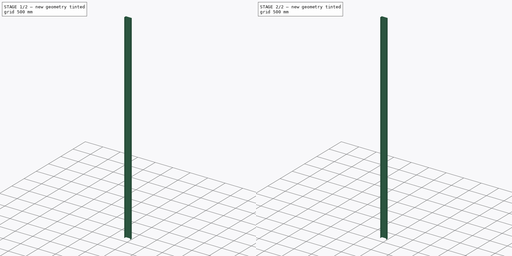
[diagram: build sequence overview — one tinted view per stage of 2, left to right]
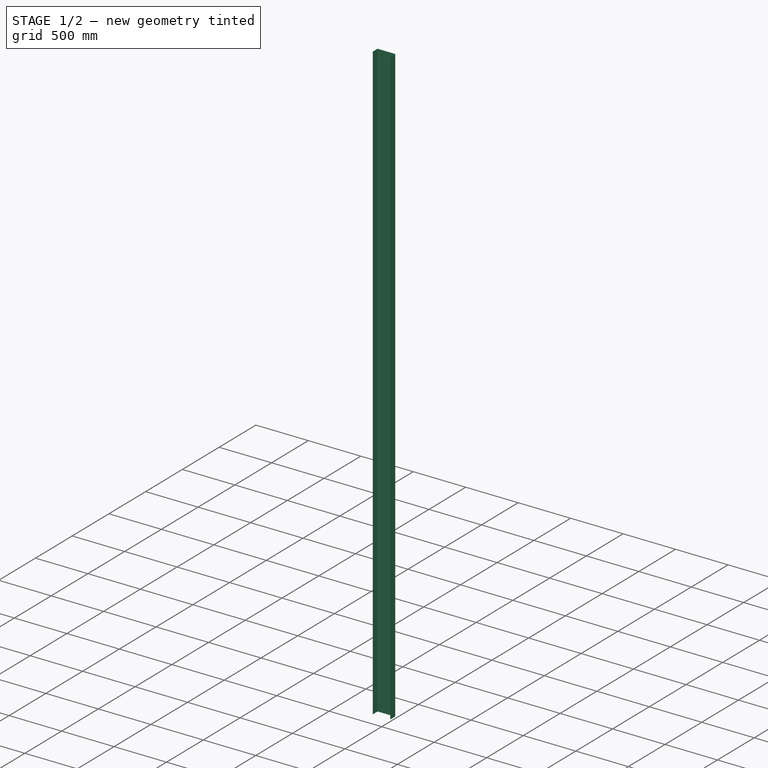
[diagram: stage 1 of 2 — iso view after this stage's code; geometry added in this stage tinted green]
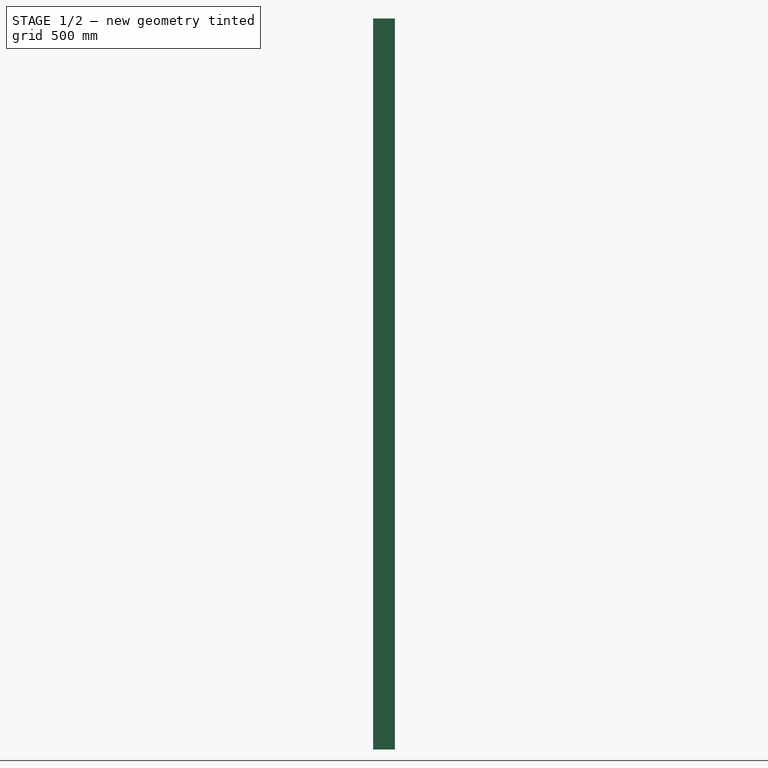
[diagram: stage 1 of 2 — front view after this stage's code; geometry added in this stage tinted green]
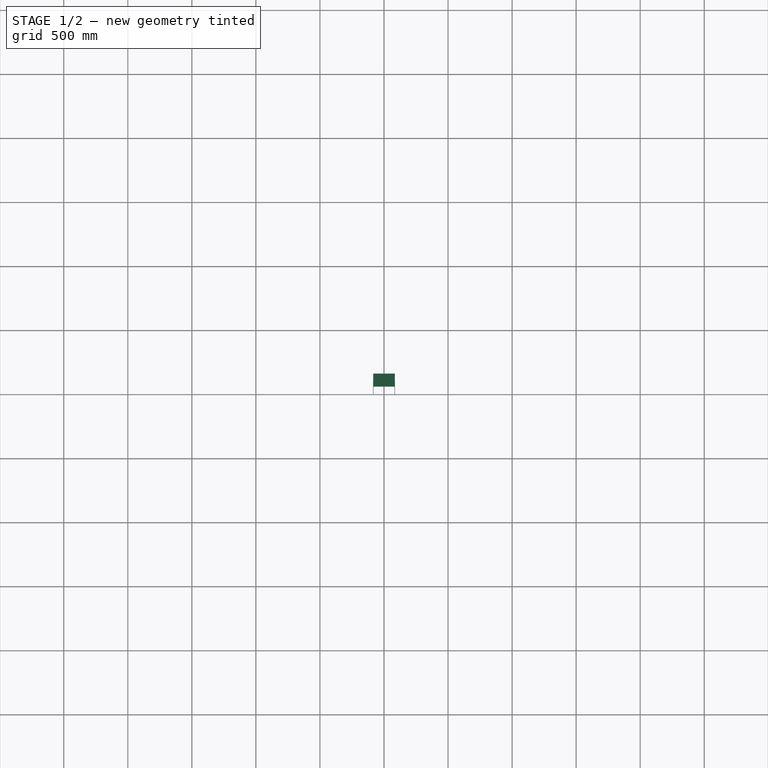
[diagram: stage 1 of 2 — top view after this stage's code; geometry added in this stage tinted green]
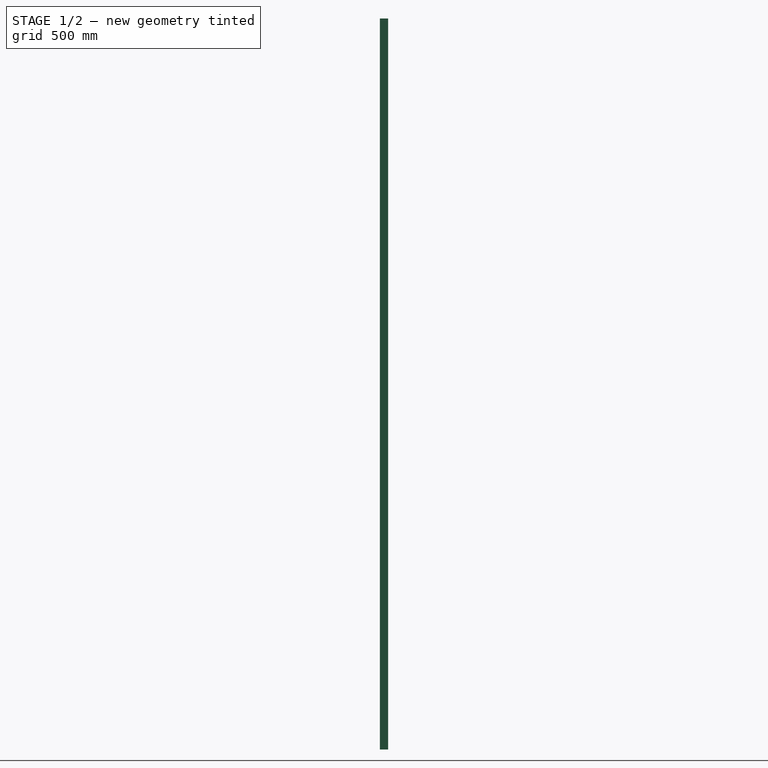
[diagram: stage 1 of 2 — right view after this stage's code; geometry added in this stage tinted green]
FCSTD DOCUMENT  (FreeCAD 0.18R4 (GitTag))
Label: side-member_bottom
License: All rights reserved
LicenseURL: http://en.wikipedia.org/wiki/All_rights_reserved
objects: PartDesign::Fillet×2, Sketcher::SketchObject×1, PartDesign::Pad×1, PartDesign::Body×1
note: 6 computed .brp shape members not serialized (recipe doc carries the construction recipe); baked Part::Feature solids carry a one-line shape summary decoded from their .brp

FEATURE [Sketcher::SketchObject] Sketch
  MapMode = 5
  Support = -> [XY_Plane]
  sketch-geometry (8):
    g0: LineSegment StartX=-84.5 StartY=64 StartZ=0 EndX=84.5 EndY=64 EndZ=0
    g1: LineSegment StartX=84.5 StartY=64 StartZ=0 EndX=84.5 EndY=0 EndZ=0
    g2: LineSegment StartX=84.5 StartY=0 StartZ=0 EndX=81.5 EndY=0 EndZ=0
    g3: LineSegment StartX=-84.5 StartY=0 StartZ=0 EndX=-84.5 EndY=64 EndZ=0
    g4: LineSegment StartX=-81.5 StartY=61 StartZ=0 EndX=81.5 EndY=61 EndZ=0
    g5: LineSegment StartX=81.5 StartY=61 StartZ=0 EndX=81.5 EndY=0 EndZ=0
    g6: LineSegment StartX=-81.5 StartY=0 StartZ=0 EndX=-81.5 EndY=61 EndZ=0
    g7: LineSegment StartX=-81.5 StartY=0 StartZ=0 EndX=-84.5 EndY=0 EndZ=0
  constraints (23):
    c: Coincident(g0,g1)
    c: Coincident(g1,g2)
    c: Coincident(g7,g3)
    c: Coincident(g3,g0)
    c: Horizontal(g0)
    c: Horizontal(g2)
    c: Vertical(g1)
    c: Vertical(g3)
    c: DistanceY(g-1,g1) = 0
    c: DistanceY(g3,g3) = 64
    c: DistanceX(g0,g0) = 169
    c: DistanceX(g-1,g0) = 84.5
    c: Coincident(g4,g5)
    c: Coincident(g6,g4)
    c: Horizontal(g4)
    c: Vertical(g5)
    c: Vertical(g6)
    c: DistanceX(g4,g0) = 3
    c: DistanceX(g0,g4) = 3
    c: DistanceY(g4,g0) = 3
    c: Coincident(g2,g5)
    c: Tangent(g2,g7)
    c: Coincident(g6,g7)
FEATURE [PartDesign::Pad] Pad
  Length = 5707
  Length2 = 100
  Midplane = true
  Profile = -> Sketch
  Type = 0
FEATURE [PartDesign::Fillet] Fillet
  Base = -> Pad [Edge20,Edge17]
  BaseFeature = -> Pad
  Radius = 3
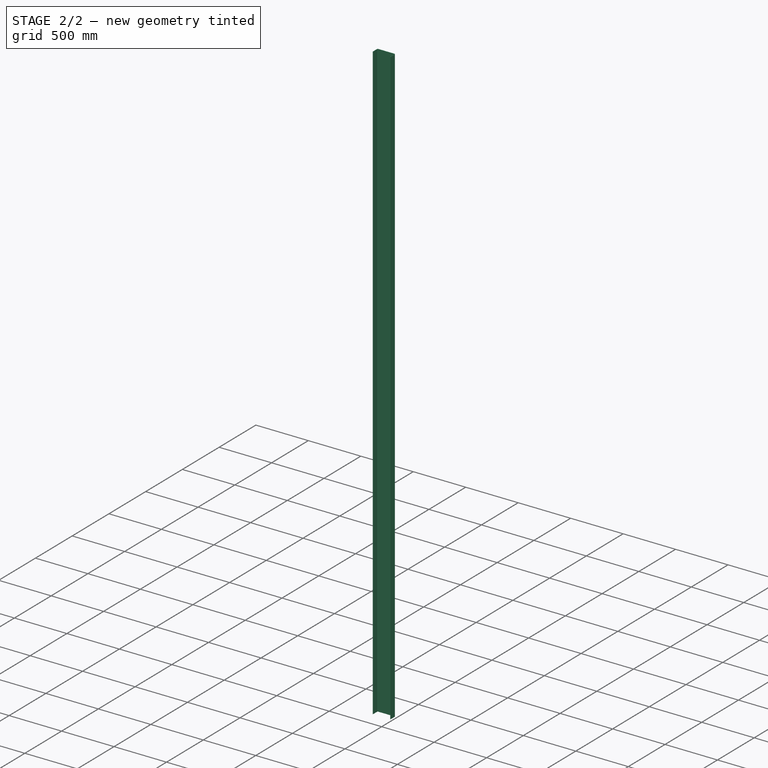
[diagram: stage 2 of 2 — iso view after this stage's code; geometry added in this stage tinted green]
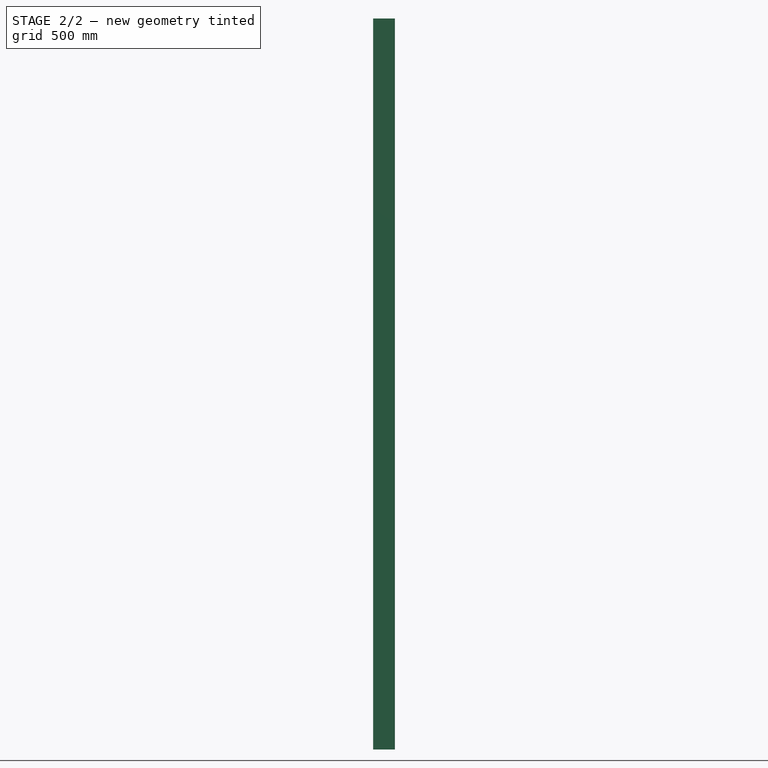
[diagram: stage 2 of 2 — front view after this stage's code; geometry added in this stage tinted green]
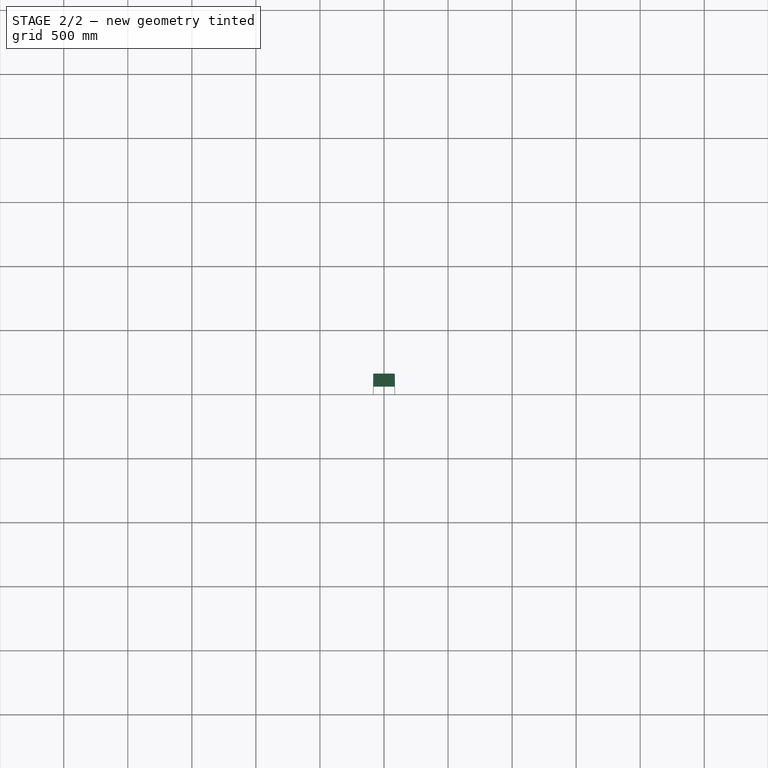
[diagram: stage 2 of 2 — top view after this stage's code; geometry added in this stage tinted green]
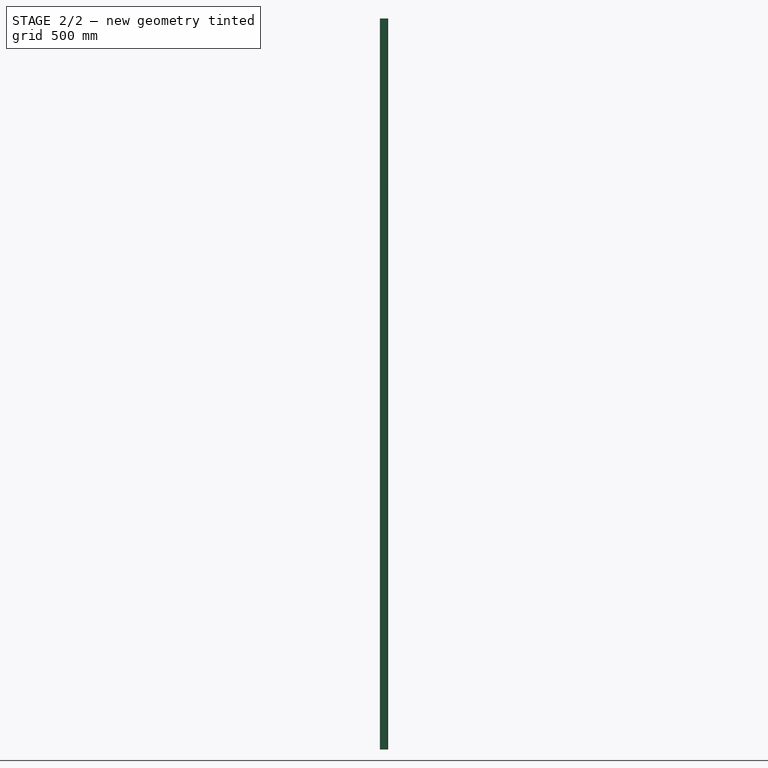
[diagram: stage 2 of 2 — right view after this stage's code; geometry added in this stage tinted green]
FEATURE [PartDesign::Fillet] Fillet001
  Base = -> Fillet [Edge28,Edge26]
  BaseFeature = -> Fillet
  Radius = 6
FEATURE [PartDesign::Body] Body
  Group = -> [Sketch,Pad,Fillet,Fillet001]
  Origin = -> Origin
  Tip = -> Fillet001
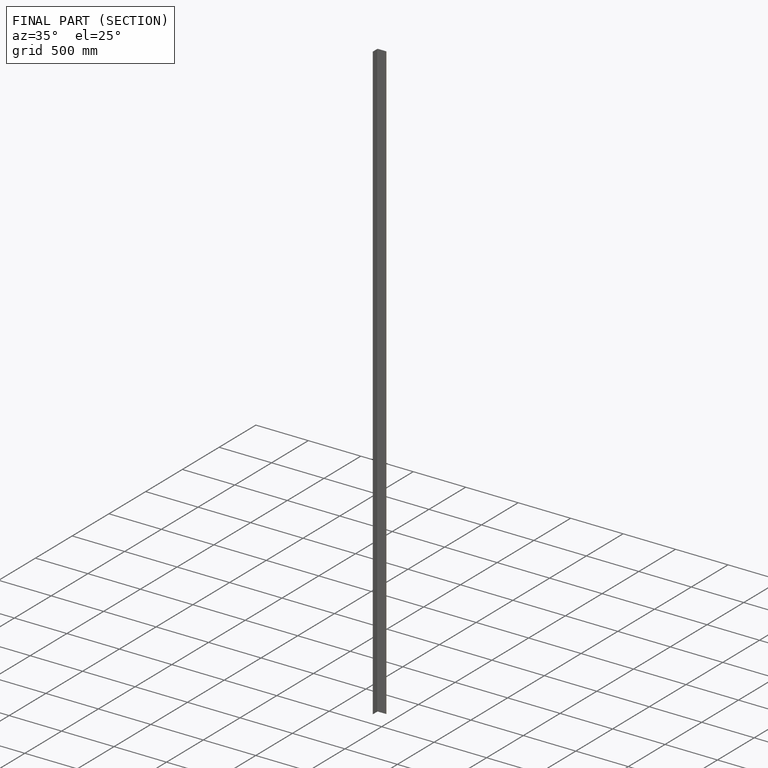
[diagram: finished part — half-section view (interior)]
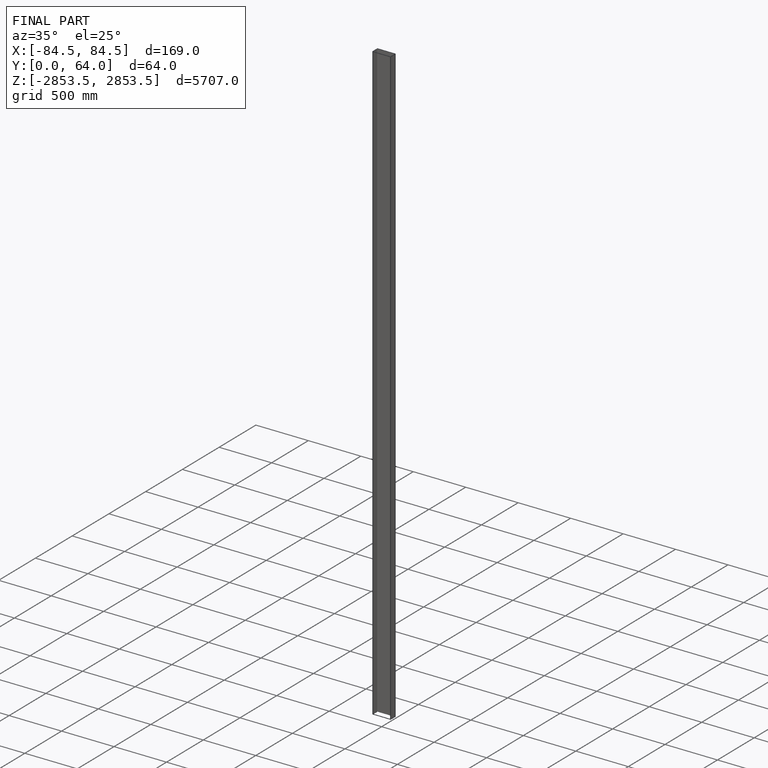
[diagram: finished part — iso view with bounding-box wireframe]
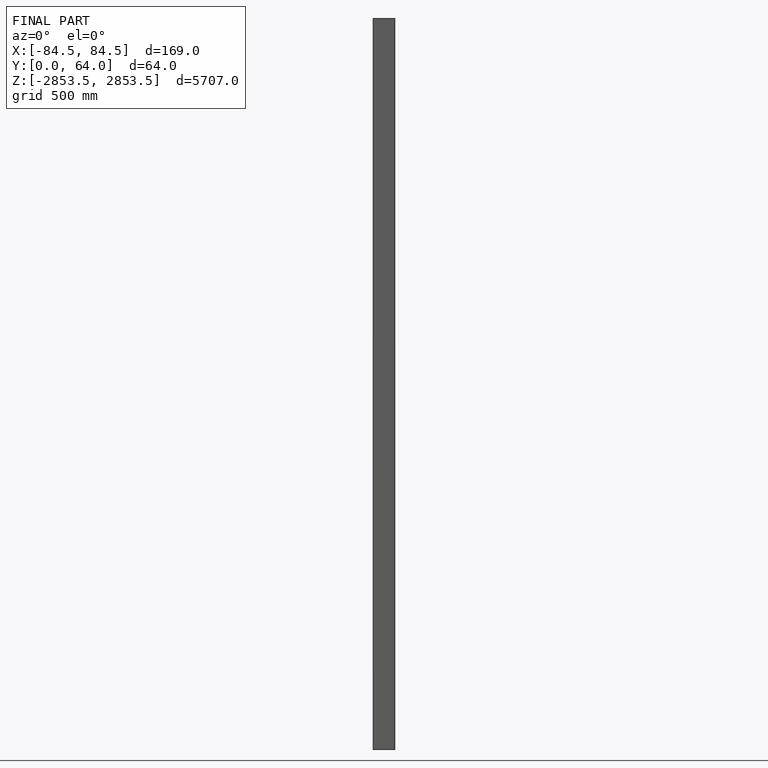
[diagram: finished part — front view with bounding-box wireframe]
